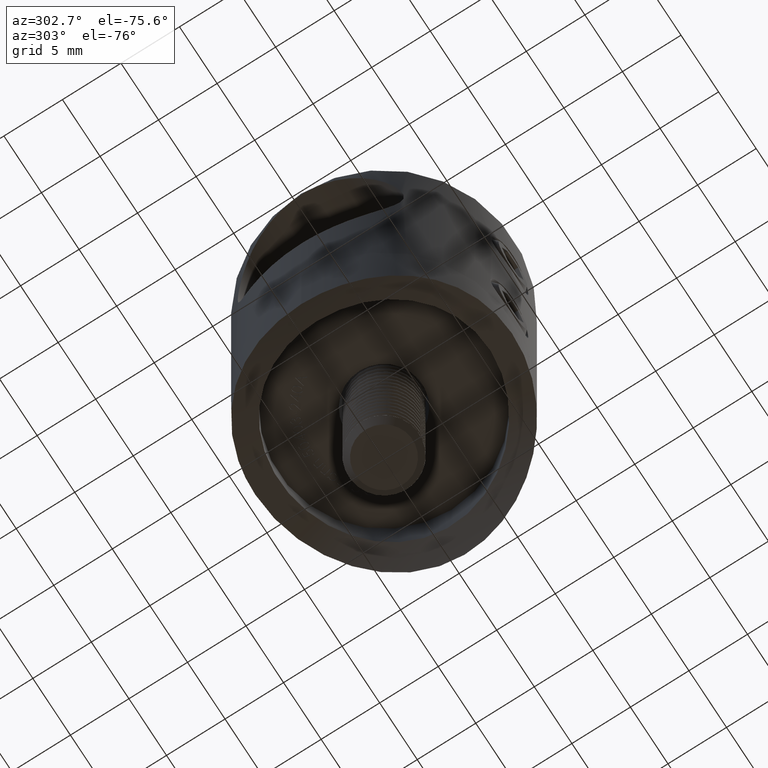
[diagram: clean part render]
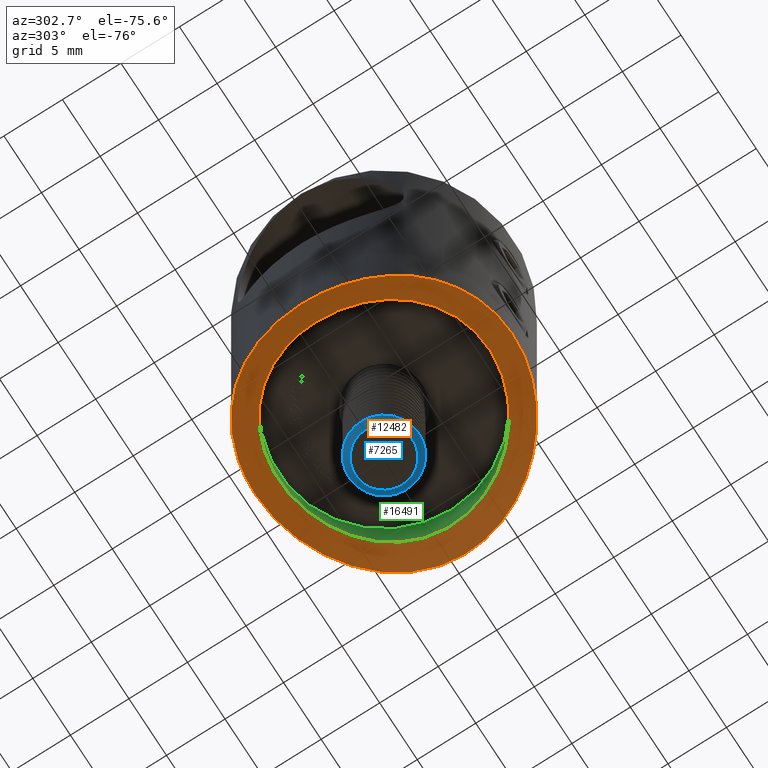
[diagram: same view with three faces highlighted in distinct colors, each labeled with its STEP entity id]
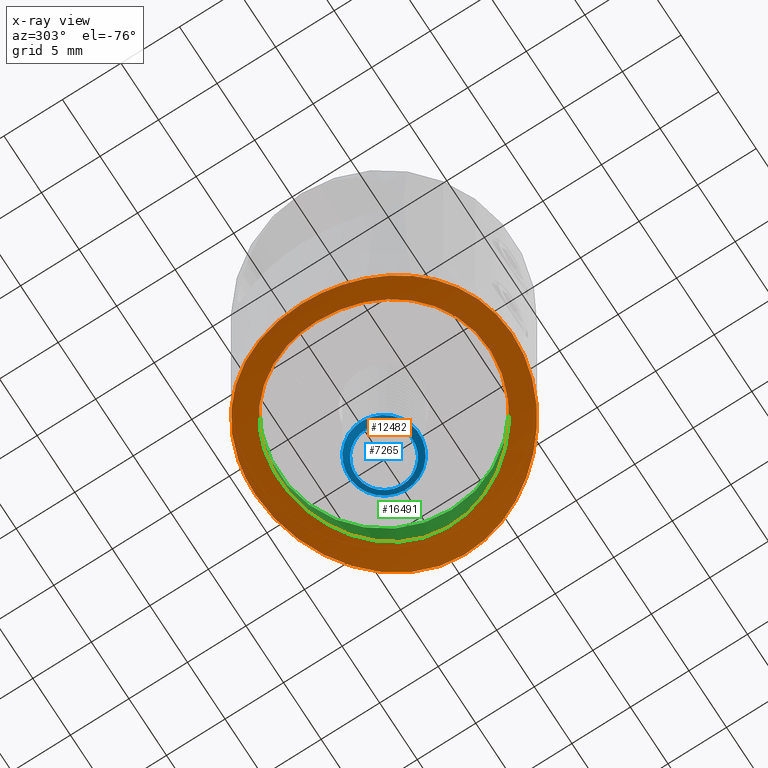
[diagram: x-ray of the same camera — body ghosted, the three highlighted faces saturated]
A machine part, auxiliary view with three faces highlighted in distinct colors.
The next image is the same camera in x-ray (body ghosted, the three faces saturated) — at least one of them is partly hidden behind the body in this view.
Their STEP definitions:

[orange] entity #12482 — the highlighted cylindrical surface (partial cylindrical patch) has radius 16.85 mm, axis along (0, 1, 0).
#294 = VERTEX_POINT ( 'NONE', #21151 ) ;
#390 = CARTESIAN_POINT ( 'NONE',  ( -7.797088794533235200, -4.532650516029330700, -6.008139167098890200 ) ) ;
#412 = ORIENTED_EDGE ( 'NONE', *, *, #1864, .T. ) ;
#607 = CARTESIAN_POINT ( 'NONE',  ( -8.526297857816198100, -2.940399998006673100, -6.414091560879913200 ) ) ;
#682 = CARTESIAN_POINT ( 'NONE',  ( -5.943528670731242700, 6.764565898683118300, -5.181228008002656300 ) ) ;
#686 = EDGE_LOOP ( 'NONE', ( #412 ) ) ;
#724 = CARTESIAN_POINT ( 'NONE',  ( 10.97857567691352700, 0.7798588940482332800, -8.167356961858532200 ) ) ;
#752 = CARTESIAN_POINT ( 'NONE',  ( 8.767997700604155400, 2.052070582208247000, -6.560788958126636300 ) ) ;
#824 = CARTESIAN_POINT ( 'NONE',  ( 9.002117627807262300, 0.5654481320849269500, -6.706251025532279400 ) ) ;
#871 = CARTESIAN_POINT ( 'NONE',  ( 5.583335700524620500, 9.504358815653152000, -5.039322906466653200 ) ) ;
#903 = CARTESIAN_POINT ( 'NONE',  ( 2.348742300159040400, -8.693213217374987400, -4.262013220954529800 ) ) ;
#953 = CARTESIAN_POINT ( 'NONE',  ( 1.484457244692798400, 10.92404542418735500, -4.149861375080862800 ) ) ;
#987 = CARTESIAN_POINT ( 'NONE',  ( 8.081130425237393700, 4.005697824238154700, -6.161957311337413800 ) ) ;
#1025 = CARTESIAN_POINT ( 'NONE',  ( 8.923976763951415600, 6.440819694390915700, -6.655284595638328900 ) ) ;
#1094 = CARTESIAN_POINT ( 'NONE',  ( -9.504457166913262300, -5.581481274748702100, -7.028651301162893700 ) ) ;
#1177 = CARTESIAN_POINT ( 'NONE',  ( -8.261126776390940000, -7.271634869465105800, -6.261808302300234900 ) ) ;
#1206 = CARTESIAN_POINT ( 'NONE',  ( -8.923624948492776100, 1.208437933319262100, -6.656899802793689400 ) ) ;
#1257 = CARTESIAN_POINT ( 'NONE',  ( -2.899918832615932600, -10.63628547833321400, -4.335527576649221600 ) ) ;
#1285 = CARTESIAN_POINT ( 'NONE',  ( -8.877634590881919900, 1.509137806476188400, -6.628161024891541700 ) ) ;
#1326 = CARTESIAN_POINT ( 'NONE',  ( -10.28190739673833900, 3.925598203230044700, -7.599535194388929300 ) ) ;
#1864 = EDGE_CURVE ( 'NONE', #294, #294, #5697, .T. ) ;
#2166 = CARTESIAN_POINT ( 'NONE',  ( -5.957807994985246000, -6.751927895200891400, -5.186641762514614800 ) ) ;
#2196 = DIRECTION ( 'NONE',  ( -0.0000000000000000000, 1.000000000000000000, -0.0000000000000000000 ) ) ;
#2436 = CARTESIAN_POINT ( 'NONE',  ( 10.60391943083395300, 2.947821833262430000, -7.854242667856583500 ) ) ;
#2464 = CARTESIAN_POINT ( 'NONE',  ( 8.523009683764774600, 2.906197388975945800, -6.414151766958431400 ) ) ;
#2509 = CARTESIAN_POINT ( 'NONE',  ( 10.26041540776501600, 3.981199565304947500, -7.583002321637183100 ) ) ;
#2541 = CARTESIAN_POINT ( 'NONE',  ( 3.200048630397407400, -8.417081813282703000, -4.404304738579494200 ) ) ;
#2616 = CARTESIAN_POINT ( 'NONE',  ( 1.476751091017767000, -8.883008077904742400, -4.162270580325193600 ) ) ;
#2663 = CARTESIAN_POINT ( 'NONE',  ( 8.269092376313965400, 7.262551162746977000, -6.266302194668813100 ) ) ;
#2691 = CARTESIAN_POINT ( 'NONE',  ( 8.422361920626258300, 3.186124711963693300, -6.355363534646164300 ) ) ;
#2768 = CARTESIAN_POINT ( 'NONE',  ( -0.2721457111335624000, 9.000858815726553900, -4.099541286885172800 ) ) ;
#2807 = CARTESIAN_POINT ( 'NONE',  ( -7.313931224412483400, 8.246267564684838900, -5.759829195327544200 ) ) ;
#2888 = CARTESIAN_POINT ( 'NONE',  ( -9.513323411660570300, 5.533801788003234600, -7.040950786251593200 ) ) ;
#2965 = CARTESIAN_POINT ( 'NONE',  ( 0.4040280168444430100, -10.99899601032173800, -4.100655422304378700 ) ) ;
#3040 = CARTESIAN_POINT ( 'NONE',  ( 4.994393721956345000, -9.807314022847331000, -4.853819657771773600 ) ) ;
#3071 = CARTESIAN_POINT ( 'NONE',  ( -8.999999999999998200, 0.3035544264433379700, -6.704913127678019600 ) ) ;
#3125 = CARTESIAN_POINT ( 'NONE',  ( -4.649684354675678800, 9.975582769408347900, -4.750546585087526800 ) ) ;
#3960 = CARTESIAN_POINT ( 'NONE',  ( -4.552025852731567600, -7.785764892461918100, -4.718630286860567400 ) ) ;
#4186 = CARTESIAN_POINT ( 'NONE',  ( -7.309928328518850500, -5.258310225204644100, -5.767105923545978300 ) ) ;
#4258 = CARTESIAN_POINT ( 'NONE',  ( -7.625567915572274200, 4.789036509286503000, -5.923160285720819700 ) ) ;
#4330 = CARTESIAN_POINT ( 'NONE',  ( -2.092200281080137400, -8.758507331697293500, -4.227817630384451200 ) ) ;
#4405 = CARTESIAN_POINT ( 'NONE',  ( 6.767025709518397200, -5.961424383751995600, -5.512278814942804100 ) ) ;
#4448 = CARTESIAN_POINT ( 'NONE',  ( 8.714127519215512800, 6.722091913860005300, -6.525962716869017300 ) ) ;
#4481 = CARTESIAN_POINT ( 'NONE',  ( 2.060544425541009700, -8.766001538176629600, -4.223888391995914500 ) ) ;
#4532 = CARTESIAN_POINT ( 'NONE',  ( 8.035128173064736100, 7.520482768428734300, -6.136631074858657400 ) ) ;
#4560 = CARTESIAN_POINT ( 'NONE',  ( 8.942784940732842400, 1.175460298121183000, -6.668270068185632800 ) ) ;
#4602 = CARTESIAN_POINT ( 'NONE',  ( -10.60270450494716400, -2.952260054067377100, -7.853254554322739400 ) ) ;
#4668 = CARTESIAN_POINT ( 'NONE',  ( 9.517753844899608900, -5.526146421711025900, -7.043990017508975600 ) ) ;
#4739 = CARTESIAN_POINT ( 'NONE',  ( -10.84386393418551700, -1.882690263943270500, -8.052616139201704800 ) ) ;
#4822 = CARTESIAN_POINT ( 'NONE',  ( -8.304453093722246500, 7.247798115150285300, -6.277885706390971900 ) ) ;
#4894 = CARTESIAN_POINT ( 'NONE',  ( -3.647820308111114700, 10.40291650209018400, -4.485087939503843700 ) ) ;
#5660 = CARTESIAN_POINT ( 'NONE',  ( -6.769756498228754400, -5.937473838987434900, -5.518430931824773300 ) ) ;
#5697 = B_SPLINE_CURVE_WITH_KNOTS ( 'NONE', 3,
 ( #14999, #20293, #953, #20440, #6079, #11494, #871, #13240, #11640, #4532, #2663, #4448, #1025, #22211, #16777, #2509, #6232, #2436, #6005, #7986, #13319, #724, #16555, #20145, #9546, #21912, #11341, #13094, #8206, #20585, #18947, #4668, #11783, #11859, #9921, #8136, #17067, #9994, #13612, #3040, #22351, #16995, #13460, #8276, #12012, #16922, #2965, #6450, #20510, #1257, #22286, #15451, #8439, #22424, #11716, #13686, #1177, #11934, #18784, #1094, #20731, #18869, #13534, #4602, #15301, #4739, #15227, #6525, #6376, #20816, #10151, #20654, #17219, #10077, #1326, #15378, #6676, #2888, #8364, #18714, #4822, #2807, #17139, #19023, #6599, #22506, #3125, #4894, #10229, #22581, #13393, #15153, #6990, #15686 ),
 .UNSPECIFIED., .T., .F.,
 ( 4, 2, 2, 2, 2, 2, 2, 2, 2, 2, 2, 2, 2, 2, 2, 2, 2, 2, 2, 2, 2, 2, 2, 2, 2, 2, 2, 2, 2, 2, 2, 2, 2, 2, 2, 2, 2, 2, 2, 2, 2, 2, 2, 2, 2, 2, 4 ),
 ( 0.0000000000000000000, 0.002215515586463679600, 0.004431031172927359300, 0.006646546759391038500, 0.008862062345854718500, 0.009969820139086562500, 0.01107757793231840600, 0.01329309351878208900, 0.01440085131201393300, 0.01550860910524577300, 0.01661636689847761600, 0.01772412469170945800, 0.01993964027817313900, 0.02104739807140498100, 0.02215515586463682300, 0.02326291365786865900, 0.02437067145110050100, 0.02658618703756418200, 0.02880170262402786600, 0.02990946041725970500, 0.03101721821049154400, 0.03323273379695522400, 0.03434049159018706000, 0.03544824938341890200, 0.03766376496988257900, 0.03987928055634625700, 0.04209479614280994100, 0.04431031172927361900, 0.04541806952250546100, 0.04652582731573729600, 0.04874134290220098800, 0.04984910069543283000, 0.05095685848866466500, 0.05206461628189650700, 0.05317237407512834200, 0.05538788966159202700, 0.05649564745482386200, 0.05760340524805570400, 0.05871116304128754700, 0.05981892083451938900, 0.06203443642098307300, 0.06424995200744676400, 0.06535770980067860700, 0.06646546759391046300, 0.06868098318037414700, 0.06978874097360598900, 0.07089649876683783200 ),
 .UNSPECIFIED. ) ;
#5738 = CARTESIAN_POINT ( 'NONE',  ( -3.231651342975603700, -8.404898307200047800, -4.410498670644122000 ) ) ;
#5955 = CARTESIAN_POINT ( 'NONE',  ( -8.939234714585193600, -1.201100035928155800, -6.666035329679028900 ) ) ;
#6005 = CARTESIAN_POINT ( 'NONE',  ( 10.69569944305366800, 2.595285760545030600, -7.929483404346758100 ) ) ;
#6035 = CARTESIAN_POINT ( 'NONE',  ( 3.777935387974453700, 8.173918097422760100, -4.526671945371069800 ) ) ;
#6079 = CARTESIAN_POINT ( 'NONE',  ( 3.631501573464931200, 10.40822166215027900, -4.481695934011163700 ) ) ;
#6108 = CARTESIAN_POINT ( 'NONE',  ( 1.220418569986022800, 8.937290988820052500, -4.133728545056423600 ) ) ;
#6187 = CARTESIAN_POINT ( 'NONE',  ( -4.777935619119113600, 7.632550779483404200, -4.789625035806794000 ) ) ;
#6232 = CARTESIAN_POINT ( 'NONE',  ( 10.38560268325633000, 3.643078061449605400, -7.680439935568902100 ) ) ;
#6265 = CARTESIAN_POINT ( 'NONE',  ( 0.6254606039708046100, 8.998160360196070700, -4.100982593789536800 ) ) ;
#6334 = CARTESIAN_POINT ( 'NONE',  ( -1.174138839021468200, 8.928204569007860400, -4.138256484811091000 ) ) ;
#6376 = CARTESIAN_POINT ( 'NONE',  ( -10.99892727231373100, -0.4035808757864801100, -8.184965698834776800 ) ) ;
#6403 = CARTESIAN_POINT ( 'NONE',  ( -8.056514729353526900, 4.022235242260661500, -6.150000922084964300 ) ) ;
#6450 = CARTESIAN_POINT ( 'NONE',  ( -0.7230737693545389300, -11.00189855515613700, -4.098760589519369700 ) ) ;
#6525 = CARTESIAN_POINT ( 'NONE',  ( -10.97850977820062600, -0.7810570618380818800, -8.167299743271211600 ) ) ;
#6599 = CARTESIAN_POINT ( 'NONE',  ( -5.604322291244399100, 9.472035219047118200, -5.055877871646831800 ) ) ;
#6676 = CARTESIAN_POINT ( 'NONE',  ( -9.850663112943012200, 4.908229904870082400, -7.277786989641064100 ) ) ;
#6990 = CARTESIAN_POINT ( 'NONE',  ( -0.3752112787644171800, 11.00000000000000200, -4.099999999999999600 ) ) ;
#7239 = DIRECTION ( 'NONE',  ( 0.0000000000000000000, 0.0000000000000000000, 1.000000000000000000 ) ) ;
#7500 = CARTESIAN_POINT ( 'NONE',  ( -2.954257939733777100, -8.506565268108298400, -4.358484209500284500 ) ) ;
#7797 = CARTESIAN_POINT ( 'NONE',  ( 5.258496553154993000, -7.309796590042275000, -4.939536630094379700 ) ) ;
#7873 = CARTESIAN_POINT ( 'NONE',  ( -3.744279541798004800, 8.189553005263970700, -4.518887132802680300 ) ) ;
#7947 = CARTESIAN_POINT ( 'NONE',  ( -5.493574878806450500, 7.134810432546717400, -5.018887727269298400 ) ) ;
#7986 = CARTESIAN_POINT ( 'NONE',  ( 10.84434200566227700, 1.879824784190038400, -8.053020297059907400 ) ) ;
#8017 = CARTESIAN_POINT ( 'NONE',  ( 7.134608504950914000, -5.517095482785879100, -5.680667870768156800 ) ) ;
#8094 = CARTESIAN_POINT ( 'NONE',  ( -1.474042599237720000, 8.883506363623125100, -4.162007519608026800 ) ) ;
#8136 = CARTESIAN_POINT ( 'NONE',  ( 7.324541236306505000, -8.236759769819171200, -5.764989743605612600 ) ) ;
#8206 = CARTESIAN_POINT ( 'NONE',  ( 10.28409182688678100, -3.919822377358858300, -7.601224180167291100 ) ) ;
#8276 = CARTESIAN_POINT ( 'NONE',  ( 1.891625101859110800, -10.84241175405865600, -4.202550746245740300 ) ) ;
#8364 = CARTESIAN_POINT ( 'NONE',  ( -9.331423384684521600, 5.834979642257271100, -6.917864575895957400 ) ) ;
#8439 = CARTESIAN_POINT ( 'NONE',  ( -5.567662256621773900, -9.513652561121729100, -5.033765088256144400 ) ) ;
#8948 = CARTESIAN_POINT ( 'NONE',  ( -8.999999999999998200, 0.0000000000000000000, -6.704913127678018700 ) ) ;
#9287 = CARTESIAN_POINT ( 'NONE',  ( -2.383502363788867000, -8.683790020312518000, -4.266926162043927400 ) ) ;
#9502 = CARTESIAN_POINT ( 'NONE',  ( -7.136054399886305100, -5.491805371263069400, -5.684363604715451300 ) ) ;
#9546 = CARTESIAN_POINT ( 'NONE',  ( 10.92911577364980900, -1.448483440927385000, -8.123745414125503200 ) ) ;
#9575 = CARTESIAN_POINT ( 'NONE',  ( -0.5722147814154092700, 8.986879830245937800, -4.107022464014129100 ) ) ;
#9643 = CARTESIAN_POINT ( 'NONE',  ( 4.019086237761177600, -8.074481764611892500, -4.576826285162552700 ) ) ;
#9723 = CARTESIAN_POINT ( 'NONE',  ( 4.532702480700874200, -7.797067203172933800, -4.713189922402301900 ) ) ;
#9801 = CARTESIAN_POINT ( 'NONE',  ( 8.063690013734735400, -4.039346743676783400, -6.152458506225569200 ) ) ;
#9877 = CARTESIAN_POINT ( 'NONE',  ( 2.969016380059763100, 8.516329794651968000, -4.354475227410789600 ) ) ;
#9921 = CARTESIAN_POINT ( 'NONE',  ( 8.312457816443618700, -7.238519246220975300, -6.282468310618768600 ) ) ;
#9994 = CARTESIAN_POINT ( 'NONE',  ( 5.920309234495463500, -9.277556956168968600, -5.171232405357976300 ) ) ;
#10077 = CARTESIAN_POINT ( 'NONE',  ( -10.40478755954617400, 3.587757172743404800, -7.695506397685850400 ) ) ;
#10151 = CARTESIAN_POINT ( 'NONE',  ( -10.92889180310983300, 1.450768181064455300, -8.123545870956636600 ) ) ;
#10229 = CARTESIAN_POINT ( 'NONE',  ( -2.953023256731231300, 10.62197701239059300, -4.344706131990983000 ) ) ;
#10326 = FACE_OUTER_BOUND ( 'NONE', #686, .T. ) ;
#11230 = CARTESIAN_POINT ( 'NONE',  ( -8.999999999999998200, 5.421010862427522200E-017, -6.704913127678019600 ) ) ;
#11301 = CARTESIAN_POINT ( 'NONE',  ( 2.917833501594557300, -8.519084111116166400, -4.352056127726987400 ) ) ;
#11341 = CARTESIAN_POINT ( 'NONE',  ( 10.61975103781053800, -2.890001075165774300, -7.867110985709172300 ) ) ;
#11372 = CARTESIAN_POINT ( 'NONE',  ( 6.156201835296486500, -6.571452150948916300, -5.263317047625912800 ) ) ;
#11447 = CARTESIAN_POINT ( 'NONE',  ( 8.680771144915244300, -2.394114882269442900, -6.507798624479782700 ) ) ;
#11494 = CARTESIAN_POINT ( 'NONE',  ( 4.957832025022766800, 9.845749512261178900, -4.831292108248831600 ) ) ;
#11523 = CARTESIAN_POINT ( 'NONE',  ( -7.139208689779468200, 5.510746426112776300, -5.682878771086206100 ) ) ;
#11594 = CARTESIAN_POINT ( 'NONE',  ( 8.997763151772490500, -0.6309608859205843000, -6.703499907095301000 ) ) ;
#11640 = CARTESIAN_POINT ( 'NONE',  ( 7.298473991795845000, 8.259301465761376800, -5.752582059087585800 ) ) ;
#11716 = CARTESIAN_POINT ( 'NONE',  ( -7.287832315626904000, -8.268784713272825800, -5.747426715403324900 ) ) ;
#11783 = CARTESIAN_POINT ( 'NONE',  ( 9.336363142654940700, -5.827041217196950600, -6.921160638891731100 ) ) ;
#11816 = CARTESIAN_POINT ( 'NONE',  ( -8.697453753089332600, 2.390370181689105400, -6.517513435117698400 ) ) ;
#11859 = CARTESIAN_POINT ( 'NONE',  ( 8.753413770078076100, -6.698215559651554700, -6.544643719260795600 ) ) ;
#11934 = CARTESIAN_POINT ( 'NONE',  ( -8.707368420141696300, -6.730871005029237100, -6.521870316638445100 ) ) ;
#12012 = CARTESIAN_POINT ( 'NONE',  ( 1.521233653155181100, -10.90071426419850400, -4.164673317254778500 ) ) ;
#12482 = ADVANCED_FACE ( 'NONE', ( #20008, #10326 ), #18859, .F. ) ;
#12756 = CARTESIAN_POINT ( 'NONE',  ( -8.703958528421882300, -2.365092918737795800, -6.521463347902023400 ) ) ;
#12838 = ORIENTED_EDGE ( 'NONE', *, *, #17218, .T. ) ;
#12975 = CARTESIAN_POINT ( 'NONE',  ( -8.072784026240093200, -4.021674449052479600, -6.157415797894997500 ) ) ;
#13049 = CARTESIAN_POINT ( 'NONE',  ( -0.6241749436309362900, -8.998437823462584400, -4.100834395043397900 ) ) ;
#13094 = CARTESIAN_POINT ( 'NONE',  ( 10.40660793608673800, -3.582419515371406200, -7.696939661726952800 ) ) ;
#13121 = CARTESIAN_POINT ( 'NONE',  ( 5.533633707270934300, 7.121846342639303300, -5.026473259026425400 ) ) ;
#13198 = CARTESIAN_POINT ( 'NONE',  ( -2.921239271995002900, 8.533463070077415200, -4.345685546142791900 ) ) ;
#13240 = CARTESIAN_POINT ( 'NONE',  ( 6.761475590729557600, 8.705683309046159800, -5.503132001748452000 ) ) ;
#13271 = CARTESIAN_POINT ( 'NONE',  ( 7.160907752727975900, 5.482500273980068800, -5.693091655285281900 ) ) ;
#13319 = CARTESIAN_POINT ( 'NONE',  ( 10.90120721894147200, 1.516899785101762700, -8.101312592176501700 ) ) ;
#13350 = CARTESIAN_POINT ( 'NONE',  ( 7.805392656181970400, 4.517992317400698200, -6.012540458132589200 ) ) ;
#13393 = CARTESIAN_POINT ( 'NONE',  ( -1.495634549109364300, 10.90427622395808900, -4.162358782812155800 ) ) ;
#13460 = CARTESIAN_POINT ( 'NONE',  ( 2.975070670190538700, -10.61571981494909300, -4.348715030468193600 ) ) ;
#13534 = CARTESIAN_POINT ( 'NONE',  ( -10.38371390694916000, -3.648515827661915200, -7.678957479281230300 ) ) ;
#13612 = CARTESIAN_POINT ( 'NONE',  ( 5.619624300000450200, -9.462938218095864300, -5.061299203953278300 ) ) ;
#13686 = CARTESIAN_POINT ( 'NONE',  ( -8.026524102714901700, -7.529690295910200800, -6.131954602171922500 ) ) ;
#13718 = CARTESIAN_POINT ( 'NONE',  ( -8.182656430668171100, 3.758905916802296200, -6.219638485047899400 ) ) ;
#13812 = B_SPLINE_CURVE_WITH_KNOTS ( 'NONE', 3,
 ( #11230, #18291, #5955, #12756, #607, #12975, #390, #4186, #9502, #5660, #17989, #19807, #2166, #21863, #14516, #3960, #16290, #5738, #7500, #9287, #4330, #16584, #13049, #20320, #16662, #18590, #2616, #4481, #903, #11301, #2541, #9643, #9723, #7797, #20399, #21941, #11372, #4405, #8017, #22014, #9801, #18670, #22164, #11447, #15110, #14951, #11594, #824, #4560, #752, #16807, #2464, #2691, #987, #13350, #13271, #14874, #15029, #13121, #20469, #18367, #16881, #6035, #9877, #20172, #6108, #6265, #2768, #9575, #6334, #8094, #18441, #13198, #7873, #20247, #16732, #6187, #18510, #7947, #682, #14805, #22087, #11523, #4258, #15180, #6403, #13718, #17097, #11816, #1285, #1206, #20540, #3071, #18978 ),
 .UNSPECIFIED., .T., .F.,
 ( 4, 2, 2, 2, 2, 2, 2, 2, 2, 2, 2, 2, 2, 2, 2, 2, 2, 2, 2, 2, 2, 2, 2, 2, 2, 2, 2, 2, 2, 2, 2, 2, 2, 2, 2, 2, 2, 2, 2, 2, 2, 2, 2, 2, 2, 2, 4 ),
 ( 0.0000000000000000000, 0.001791929199387558800, 0.003583858398775116800, 0.005375787598162674700, 0.006271752197856455400, 0.007167716797550235200, 0.008063681397244015100, 0.008959645996937794900, 0.01075157519632535300, 0.01164753979601913100, 0.01254350439571290900, 0.01433543359510046400, 0.01523139819479424300, 0.01612736279448802300, 0.01702332739418180300, 0.01791929199387558300, 0.01971122119326313600, 0.02060718579295691500, 0.02150315039265069500, 0.02329507959203825800, 0.02508700879142582200, 0.02598297339111959800, 0.02687893799081337800, 0.02867086719020093800, 0.03046279638958850100, 0.03135876098928228100, 0.03225472558897606000, 0.03404665478836362000, 0.03583858398775118000, 0.03763051318713873200, 0.03852647778683251200, 0.03942244238652629200, 0.04121437158591385200, 0.04300630078530141100, 0.04390226538499519100, 0.04479822998468897100, 0.04659015918407653100, 0.04748612378377031100, 0.04838208838346409100, 0.04927805298315787000, 0.05017401758285164300, 0.05196594678223920300, 0.05286191138193298300, 0.05375787598162676300, 0.05554980518101432200, 0.05644576978070810200, 0.05734173438040188200 ),
 .UNSPECIFIED. ) ;
#14516 = CARTESIAN_POINT ( 'NONE',  ( -5.276021894448012600, -7.297147494087153200, -4.945311827422430400 ) ) ;
#14805 = CARTESIAN_POINT ( 'NONE',  ( -6.159890061767185900, 6.568056148921659300, -5.264751887033814800 ) ) ;
#14874 = CARTESIAN_POINT ( 'NONE',  ( 6.789418910662325500, 5.935974566348902700, -5.522137807243876900 ) ) ;
#14951 = CARTESIAN_POINT ( 'NONE',  ( 8.936562260900343400, -1.223008817333223400, -6.664333553120041400 ) ) ;
#14999 = CARTESIAN_POINT ( 'NONE',  ( -5.421010862427522200E-016, 11.00000000000000000, -4.099999999999999600 ) ) ;
#15029 = CARTESIAN_POINT ( 'NONE',  ( 5.977026886871089000, 6.753306804108662600, -5.189597385321874000 ) ) ;
#15110 = CARTESIAN_POINT ( 'NONE',  ( 8.756187516724763100, -2.102059484055854600, -6.553588714871732000 ) ) ;
#15153 = CARTESIAN_POINT ( 'NONE',  ( -0.7507821401581715700, 10.98073261904172200, -4.112596799995159800 ) ) ;
#15180 = CARTESIAN_POINT ( 'NONE',  ( -7.777914304797517900, 4.537604543765374900, -6.001707409948039600 ) ) ;
#15188 = VERTEX_POINT ( 'NONE', #8948 ) ;
#15227 = CARTESIAN_POINT ( 'NONE',  ( -10.90090342499425300, -1.519220722226561200, -8.101054233036480300 ) ) ;
#15301 = CARTESIAN_POINT ( 'NONE',  ( -10.69476580629262200, -2.599209880257915600, -7.928714355929983500 ) ) ;
#15378 = CARTESIAN_POINT ( 'NONE',  ( -10.00515826687519700, 4.585275239621323000, -7.390894635126502800 ) ) ;
#15450 = AXIS2_PLACEMENT_3D ( 'NONE', #17793, #2196, #7239 ) ;
#15451 = CARTESIAN_POINT ( 'NONE',  ( -4.940812458176210100, -9.854400788619697600, -4.825997802038250100 ) ) ;
#15686 = CARTESIAN_POINT ( 'NONE',  ( -5.421010862427522200E-016, 11.00000000000000000, -4.099999999999999600 ) ) ;
#16290 = CARTESIAN_POINT ( 'NONE',  ( -4.041567885135373600, -8.062832806003337200, -4.582565028840782900 ) ) ;
#16555 = CARTESIAN_POINT ( 'NONE',  ( 10.99892969909351400, 0.4029729965433923600, -8.184967790190246000 ) ) ;
#16584 = CARTESIAN_POINT ( 'NONE',  ( -1.216522046379911300, -8.937286215225501700, -4.133718752768097600 ) ) ;
#16662 = CARTESIAN_POINT ( 'NONE',  ( 0.5822777371568735900, -8.986183028970740900, -4.107394420722656000 ) ) ;
#16732 = CARTESIAN_POINT ( 'NONE',  ( -4.528431843985454300, 7.783269436300313000, -4.717717369417859400 ) ) ;
#16777 = CARTESIAN_POINT ( 'NONE',  ( 9.843250045500743900, 4.961322990543318500, -7.269578455515920200 ) ) ;
#16807 = CARTESIAN_POINT ( 'NONE',  ( 8.695601738897531500, 2.339698213813247800, -6.516736740360895100 ) ) ;
#16881 = CARTESIAN_POINT ( 'NONE',  ( 4.041245168714114700, 8.046985468913808500, -4.589635013371438500 ) ) ;
#16922 = CARTESIAN_POINT ( 'NONE',  ( 0.7777350981201828200, -10.97883652370981800, -4.113834409488529100 ) ) ;
#16995 = CARTESIAN_POINT ( 'NONE',  ( 3.668218985695954600, -10.39566322427721600, -4.489679260312636100 ) ) ;
#17067 = CARTESIAN_POINT ( 'NONE',  ( 6.789191799571511000, -8.683281219485916600, -5.515698990244468200 ) ) ;
#17097 = CARTESIAN_POINT ( 'NONE',  ( -8.522281340456125100, 2.951555618486552100, -6.411744009398446100 ) ) ;
#17139 = CARTESIAN_POINT ( 'NONE',  ( -6.777151808125120500, 8.692780634645684400, -5.510347272570602900 ) ) ;
#17218 = EDGE_CURVE ( 'NONE', #15188, #15188, #13812, .T. ) ;
#17219 = CARTESIAN_POINT ( 'NONE',  ( -10.61856669320482600, 2.894416533918324800, -7.866145591033403900 ) ) ;
#17793 = CARTESIAN_POINT ( 'NONE',  ( 0.0000000000000000000, -11.00000000000000000, -20.94999999999999900 ) ) ;
#17989 = CARTESIAN_POINT ( 'NONE',  ( -6.576742401764640500, -6.150538336385889000, -5.434941400903024800 ) ) ;
#18291 = CARTESIAN_POINT ( 'NONE',  ( -8.999999999999996400, -0.6071088528866758200, -6.704913127678017800 ) ) ;
#18367 = CARTESIAN_POINT ( 'NONE',  ( 4.555459080950839700, 7.767459701366187000, -4.725296687731406200 ) ) ;
#18441 = CARTESIAN_POINT ( 'NONE',  ( -2.353999689058933900, 8.707274720112540200, -4.254816326611737600 ) ) ;
#18510 = CARTESIAN_POINT ( 'NONE',  ( -5.260507770464912800, 7.308321160069401600, -4.940207816444088400 ) ) ;
#18590 = CARTESIAN_POINT ( 'NONE',  ( 1.181156269983225400, -8.927228162158147700, -4.138775180607090900 ) ) ;
#18670 = CARTESIAN_POINT ( 'NONE',  ( 8.403798506831426700, -3.234350838250581500, -6.344671233382892500 ) ) ;
#18714 = CARTESIAN_POINT ( 'NONE',  ( -8.746824076971785500, 6.706926852566843100, -6.540603192880103800 ) ) ;
#18784 = CARTESIAN_POINT ( 'NONE',  ( -8.917872823006519000, -6.449298731427829200, -6.651465696766070600 ) ) ;
#18859 = CYLINDRICAL_SURFACE ( 'NONE', #15450, 16.85000000000000100 ) ;
#18869 = CARTESIAN_POINT ( 'NONE',  ( -10.25818145571561900, -3.986997462161848500, -7.581281686274249600 ) ) ;
#18947 = CARTESIAN_POINT ( 'NONE',  ( 9.854148997464204000, -4.901191698155273000, -7.280307266766505400 ) ) ;
#18978 = CARTESIAN_POINT ( 'NONE',  ( -8.999999999999998200, 5.421010862427522200E-017, -6.704913127678019600 ) ) ;
#19023 = CARTESIAN_POINT ( 'NONE',  ( -5.905856559890865200, 9.286787051618294000, -5.165802236493235900 ) ) ;
#19807 = CARTESIAN_POINT ( 'NONE',  ( -6.170767472243693600, -6.557765720885474700, -5.269049366952234700 ) ) ;
#20008 = FACE_BOUND ( 'NONE', #20284, .T. ) ;
#20145 = CARTESIAN_POINT ( 'NONE',  ( 11.00201491404832400, -0.7148670346551255800, -8.187626584236538100 ) ) ;
#20172 = CARTESIAN_POINT ( 'NONE',  ( 2.403321873601216300, 8.694172512475290700, -4.261667216160061500 ) ) ;
#20247 = CARTESIAN_POINT ( 'NONE',  ( -4.012208138427205900, 8.061523673450732700, -4.582474829142354300 ) ) ;
#20284 = EDGE_LOOP ( 'NONE', ( #12838 ) ) ;
#20293 = CARTESIAN_POINT ( 'NONE',  ( 0.7504225575288329100, 10.99999999999999600, -4.099999999999999600 ) ) ;
#20320 = CARTESIAN_POINT ( 'NONE',  ( 0.2776672623730794800, -9.000737208537467300, -4.099606239696249200 ) ) ;
#20399 = CARTESIAN_POINT ( 'NONE',  ( 5.493936980478560300, -7.134494571433200400, -5.019023662124764600 ) ) ;
#20440 = CARTESIAN_POINT ( 'NONE',  ( 2.922207133913592000, 10.63010287850188700, -4.339491982653713700 ) ) ;
#20469 = CARTESIAN_POINT ( 'NONE',  ( 4.807725246531378000, 7.613883850405599700, -4.798448853962939100 ) ) ;
#20510 = CARTESIAN_POINT ( 'NONE',  ( -1.459233787555855600, -10.92752189499604600, -4.147593627837132100 ) ) ;
#20540 = CARTESIAN_POINT ( 'NONE',  ( -8.984605093228683600, 0.6068572968801700900, -6.695152866920287800 ) ) ;
#20585 = CARTESIAN_POINT ( 'NONE',  ( 10.00816566813236000, -4.578664885433245700, -7.393120545228461200 ) ) ;
#20654 = CARTESIAN_POINT ( 'NONE',  ( -10.70988451701696900, 2.536675919777241300, -7.941160734935115400 ) ) ;
#20731 = CARTESIAN_POINT ( 'NONE',  ( -9.839819540571294700, -4.968268669836859000, -7.267086716290001500 ) ) ;
#20816 = CARTESIAN_POINT ( 'NONE',  ( -11.00201958474417000, 0.7160165617464400200, -8.187630609358146600 ) ) ;
#21151 = CARTESIAN_POINT ( 'NONE',  ( 0.0000000000000000000, 11.00000000000000000, -4.099999999999999600 ) ) ;
#21863 = CARTESIAN_POINT ( 'NONE',  ( -5.511031421548648400, -7.121273697717669800, -5.024942018971737300 ) ) ;
#21912 = CARTESIAN_POINT ( 'NONE',  ( 10.71079635700079700, -2.532737721711200600, -7.941913631408527700 ) ) ;
#21941 = CARTESIAN_POINT ( 'NONE',  ( 5.942505359260779900, -6.765425809986878000, -5.180853520923607300 ) ) ;
#22014 = CARTESIAN_POINT ( 'NONE',  ( 7.787708627573255900, -4.548909255757393100, -6.003203134994749700 ) ) ;
#22087 = CARTESIAN_POINT ( 'NONE',  ( -6.773231474935248500, 5.954642221051535100, -5.514947323043687200 ) ) ;
#22164 = CARTESIAN_POINT ( 'NONE',  ( 8.504749320993932200, -2.959191228520101600, -6.403446895277067300 ) ) ;
#22211 = CARTESIAN_POINT ( 'NONE',  ( 9.508842883804703700, 5.573866296199705400, -7.031688101207270100 ) ) ;
#22286 = CARTESIAN_POINT ( 'NONE',  ( -3.610935265409396200, -10.41546874406719200, -4.477106473489020500 ) ) ;
#22351 = CARTESIAN_POINT ( 'NONE',  ( 4.667745864453625200, -9.967123940474456500, -4.755756550861145000 ) ) ;
#22424 = CARTESIAN_POINT ( 'NONE',  ( -6.749316910489418400, -8.715226290770093700, -5.497747154171783300 ) ) ;
#22506 = CARTESIAN_POINT ( 'NONE',  ( -4.977280282428550300, 9.816035886505098100, -4.848502319184940600 ) ) ;
#22581 = CARTESIAN_POINT ( 'NONE',  ( -1.866901934787220000, 10.84672128652364400, -4.199758662475307600 ) ) ;

[blue] entity #7265 — the highlighted conical surface has half-angle 45 deg.
#22 = FACE_OUTER_BOUND ( 'NONE', #3466, .T. ) ;
#2002 = DIRECTION ( 'NONE',  ( 0.0000000000000000000, 0.0000000000000000000, 1.000000000000000000 ) ) ;
#3466 = EDGE_LOOP ( 'NONE', ( #12305 ) ) ;
#3700 = AXIS2_PLACEMENT_3D ( 'NONE', #5350, #12304, #10373 ) ;
#4254 = CIRCLE ( 'NONE', #16776, 3.000000000000000900 ) ;
#4293 = AXIS2_PLACEMENT_3D ( 'NONE', #20487, #20783, #6573 ) ;
#4968 = EDGE_CURVE ( 'NONE', #8881, #8881, #11163, .T. ) ;
#5350 = CARTESIAN_POINT ( 'NONE',  ( 25.00000000000000000, 0.0000000000000000000, 0.0000000000000000000 ) ) ;
#5552 = CARTESIAN_POINT ( 'NONE',  ( 24.44550000000003100, 0.0000000000000000000, 3.000000000000000900 ) ) ;
#5569 = VERTEX_POINT ( 'NONE', #5552 ) ;
#5723 = DIRECTION ( 'NONE',  ( -1.000000000000000000, -0.0000000000000000000, -0.0000000000000000000 ) ) ;
#5992 = EDGE_LOOP ( 'NONE', ( #22099 ) ) ;
#6396 = CONICAL_SURFACE ( 'NONE', #4293, 2.445500000000000000, 0.7853981633974744800 ) ;
#6573 = DIRECTION ( 'NONE',  ( 0.0000000000000000000, 0.0000000000000000000, 1.000000000000000000 ) ) ;
#7265 = ADVANCED_FACE ( 'NONE', ( #22, #22408 ), #6396, .T. ) ;
#8881 = VERTEX_POINT ( 'NONE', #12039 ) ;
#9846 = EDGE_CURVE ( 'NONE', #5569, #5569, #4254, .T. ) ;
#10373 = DIRECTION ( 'NONE',  ( 0.0000000000000000000, 0.0000000000000000000, 1.000000000000000000 ) ) ;
#11163 = CIRCLE ( 'NONE', #3700, 2.445500000000000000 ) ;
#12039 = CARTESIAN_POINT ( 'NONE',  ( 25.00000000000000000, 0.0000000000000000000, 2.445500000000000000 ) ) ;
#12304 = DIRECTION ( 'NONE',  ( -1.000000000000000000, -0.0000000000000000000, -0.0000000000000000000 ) ) ;
#12305 = ORIENTED_EDGE ( 'NONE', *, *, #9846, .F. ) ;
#14650 = CARTESIAN_POINT ( 'NONE',  ( 24.44550000000003100, 0.0000000000000000000, 0.0000000000000000000 ) ) ;
#16776 = AXIS2_PLACEMENT_3D ( 'NONE', #14650, #5723, #2002 ) ;
#20487 = CARTESIAN_POINT ( 'NONE',  ( 25.00000000000000000, 0.0000000000000000000, 0.0000000000000000000 ) ) ;
#20783 = DIRECTION ( 'NONE',  ( -1.000000000000000000, -0.0000000000000000000, -0.0000000000000000000 ) ) ;
#22099 = ORIENTED_EDGE ( 'NONE', *, *, #4968, .T. ) ;
#22408 = FACE_BOUND ( 'NONE', #5992, .T. ) ;

[green] entity #16491 — the highlighted cylindrical surface (bore or boss wall) has radius 9 mm, axis along (-0, -0, -1).
#390 = CARTESIAN_POINT ( 'NONE',  ( -7.797088794533235200, -4.532650516029330700, -6.008139167098890200 ) ) ;
#556 = VERTEX_POINT ( 'NONE', #14339 ) ;
#607 = CARTESIAN_POINT ( 'NONE',  ( -8.526297857816198100, -2.940399998006673100, -6.414091560879913200 ) ) ;
#682 = CARTESIAN_POINT ( 'NONE',  ( -5.943528670731242700, 6.764565898683118300, -5.181228008002656300 ) ) ;
#752 = CARTESIAN_POINT ( 'NONE',  ( 8.767997700604155400, 2.052070582208247000, -6.560788958126636300 ) ) ;
#816 = CARTESIAN_POINT ( 'NONE',  ( 0.0000000000000000000, 0.0000000000000000000, -2.099999999999999600 ) ) ;
#824 = CARTESIAN_POINT ( 'NONE',  ( 9.002117627807262300, 0.5654481320849269500, -6.706251025532279400 ) ) ;
#903 = CARTESIAN_POINT ( 'NONE',  ( 2.348742300159040400, -8.693213217374987400, -4.262013220954529800 ) ) ;
#987 = CARTESIAN_POINT ( 'NONE',  ( 8.081130425237393700, 4.005697824238154700, -6.161957311337413800 ) ) ;
#1206 = CARTESIAN_POINT ( 'NONE',  ( -8.923624948492776100, 1.208437933319262100, -6.656899802793689400 ) ) ;
#1285 = CARTESIAN_POINT ( 'NONE',  ( -8.877634590881919900, 1.509137806476188400, -6.628161024891541700 ) ) ;
#2166 = CARTESIAN_POINT ( 'NONE',  ( -5.957807994985246000, -6.751927895200891400, -5.186641762514614800 ) ) ;
#2464 = CARTESIAN_POINT ( 'NONE',  ( 8.523009683764774600, 2.906197388975945800, -6.414151766958431400 ) ) ;
#2541 = CARTESIAN_POINT ( 'NONE',  ( 3.200048630397407400, -8.417081813282703000, -4.404304738579494200 ) ) ;
#2616 = CARTESIAN_POINT ( 'NONE',  ( 1.476751091017767000, -8.883008077904742400, -4.162270580325193600 ) ) ;
#2691 = CARTESIAN_POINT ( 'NONE',  ( 8.422361920626258300, 3.186124711963693300, -6.355363534646164300 ) ) ;
#2768 = CARTESIAN_POINT ( 'NONE',  ( -0.2721457111335624000, 9.000858815726553900, -4.099541286885172800 ) ) ;
#3071 = CARTESIAN_POINT ( 'NONE',  ( -8.999999999999998200, 0.3035544264433379700, -6.704913127678019600 ) ) ;
#3960 = CARTESIAN_POINT ( 'NONE',  ( -4.552025852731567600, -7.785764892461918100, -4.718630286860567400 ) ) ;
#4186 = CARTESIAN_POINT ( 'NONE',  ( -7.309928328518850500, -5.258310225204644100, -5.767105923545978300 ) ) ;
#4258 = CARTESIAN_POINT ( 'NONE',  ( -7.625567915572274200, 4.789036509286503000, -5.923160285720819700 ) ) ;
#4330 = CARTESIAN_POINT ( 'NONE',  ( -2.092200281080137400, -8.758507331697293500, -4.227817630384451200 ) ) ;
#4405 = CARTESIAN_POINT ( 'NONE',  ( 6.767025709518397200, -5.961424383751995600, -5.512278814942804100 ) ) ;
#4481 = CARTESIAN_POINT ( 'NONE',  ( 2.060544425541009700, -8.766001538176629600, -4.223888391995914500 ) ) ;
#4560 = CARTESIAN_POINT ( 'NONE',  ( 8.942784940732842400, 1.175460298121183000, -6.668270068185632800 ) ) ;
#5660 = CARTESIAN_POINT ( 'NONE',  ( -6.769756498228754400, -5.937473838987434900, -5.518430931824773300 ) ) ;
#5738 = CARTESIAN_POINT ( 'NONE',  ( -3.231651342975603700, -8.404898307200047800, -4.410498670644122000 ) ) ;
#5955 = CARTESIAN_POINT ( 'NONE',  ( -8.939234714585193600, -1.201100035928155800, -6.666035329679028900 ) ) ;
#6035 = CARTESIAN_POINT ( 'NONE',  ( 3.777935387974453700, 8.173918097422760100, -4.526671945371069800 ) ) ;
#6108 = CARTESIAN_POINT ( 'NONE',  ( 1.220418569986022800, 8.937290988820052500, -4.133728545056423600 ) ) ;
#6187 = CARTESIAN_POINT ( 'NONE',  ( -4.777935619119113600, 7.632550779483404200, -4.789625035806794000 ) ) ;
#6265 = CARTESIAN_POINT ( 'NONE',  ( 0.6254606039708046100, 8.998160360196070700, -4.100982593789536800 ) ) ;
#6334 = CARTESIAN_POINT ( 'NONE',  ( -1.174138839021468200, 8.928204569007860400, -4.138256484811091000 ) ) ;
#6403 = CARTESIAN_POINT ( 'NONE',  ( -8.056514729353526900, 4.022235242260661500, -6.150000922084964300 ) ) ;
#6569 = ORIENTED_EDGE ( 'NONE', *, *, #22471, .F. ) ;
#6684 = CIRCLE ( 'NONE', #13918, 8.999999999999998200 ) ;
#7500 = CARTESIAN_POINT ( 'NONE',  ( -2.954257939733777100, -8.506565268108298400, -4.358484209500284500 ) ) ;
#7797 = CARTESIAN_POINT ( 'NONE',  ( 5.258496553154993000, -7.309796590042275000, -4.939536630094379700 ) ) ;
#7873 = CARTESIAN_POINT ( 'NONE',  ( -3.744279541798004800, 8.189553005263970700, -4.518887132802680300 ) ) ;
#7947 = CARTESIAN_POINT ( 'NONE',  ( -5.493574878806450500, 7.134810432546717400, -5.018887727269298400 ) ) ;
#8017 = CARTESIAN_POINT ( 'NONE',  ( 7.134608504950914000, -5.517095482785879100, -5.680667870768156800 ) ) ;
#8094 = CARTESIAN_POINT ( 'NONE',  ( -1.474042599237720000, 8.883506363623125100, -4.162007519608026800 ) ) ;
#8948 = CARTESIAN_POINT ( 'NONE',  ( -8.999999999999998200, 0.0000000000000000000, -6.704913127678018700 ) ) ;
#9287 = CARTESIAN_POINT ( 'NONE',  ( -2.383502363788867000, -8.683790020312518000, -4.266926162043927400 ) ) ;
#9492 = DIRECTION ( 'NONE',  ( -0.0000000000000000000, -0.0000000000000000000, -1.000000000000000000 ) ) ;
#9502 = CARTESIAN_POINT ( 'NONE',  ( -7.136054399886305100, -5.491805371263069400, -5.684363604715451300 ) ) ;
#9575 = CARTESIAN_POINT ( 'NONE',  ( -0.5722147814154092700, 8.986879830245937800, -4.107022464014129100 ) ) ;
#9643 = CARTESIAN_POINT ( 'NONE',  ( 4.019086237761177600, -8.074481764611892500, -4.576826285162552700 ) ) ;
#9723 = CARTESIAN_POINT ( 'NONE',  ( 4.532702480700874200, -7.797067203172933800, -4.713189922402301900 ) ) ;
#9801 = CARTESIAN_POINT ( 'NONE',  ( 8.063690013734735400, -4.039346743676783400, -6.152458506225569200 ) ) ;
#9877 = CARTESIAN_POINT ( 'NONE',  ( 2.969016380059763100, 8.516329794651968000, -4.354475227410789600 ) ) ;
#11230 = CARTESIAN_POINT ( 'NONE',  ( -8.999999999999998200, 5.421010862427522200E-017, -6.704913127678019600 ) ) ;
#11301 = CARTESIAN_POINT ( 'NONE',  ( 2.917833501594557300, -8.519084111116166400, -4.352056127726987400 ) ) ;
#11372 = CARTESIAN_POINT ( 'NONE',  ( 6.156201835296486500, -6.571452150948916300, -5.263317047625912800 ) ) ;
#11447 = CARTESIAN_POINT ( 'NONE',  ( 8.680771144915244300, -2.394114882269442900, -6.507798624479782700 ) ) ;
#11523 = CARTESIAN_POINT ( 'NONE',  ( -7.139208689779468200, 5.510746426112776300, -5.682878771086206100 ) ) ;
#11594 = CARTESIAN_POINT ( 'NONE',  ( 8.997763151772490500, -0.6309608859205843000, -6.703499907095301000 ) ) ;
#11816 = CARTESIAN_POINT ( 'NONE',  ( -8.697453753089332600, 2.390370181689105400, -6.517513435117698400 ) ) ;
#12756 = CARTESIAN_POINT ( 'NONE',  ( -8.703958528421882300, -2.365092918737795800, -6.521463347902023400 ) ) ;
#12975 = CARTESIAN_POINT ( 'NONE',  ( -8.072784026240093200, -4.021674449052479600, -6.157415797894997500 ) ) ;
#13049 = CARTESIAN_POINT ( 'NONE',  ( -0.6241749436309362900, -8.998437823462584400, -4.100834395043397900 ) ) ;
#13121 = CARTESIAN_POINT ( 'NONE',  ( 5.533633707270934300, 7.121846342639303300, -5.026473259026425400 ) ) ;
#13198 = CARTESIAN_POINT ( 'NONE',  ( -2.921239271995002900, 8.533463070077415200, -4.345685546142791900 ) ) ;
#13271 = CARTESIAN_POINT ( 'NONE',  ( 7.160907752727975900, 5.482500273980068800, -5.693091655285281900 ) ) ;
#13341 = DIRECTION ( 'NONE',  ( -1.000000000000000000, 0.0000000000000000000, 0.0000000000000000000 ) ) ;
#13350 = CARTESIAN_POINT ( 'NONE',  ( 7.805392656181970400, 4.517992317400698200, -6.012540458132589200 ) ) ;
#13630 = EDGE_LOOP ( 'NONE', ( #6569 ) ) ;
#13687 = CARTESIAN_POINT ( 'NONE',  ( 0.0000000000000000000, 0.0000000000000000000, -2.100000000000000100 ) ) ;
#13718 = CARTESIAN_POINT ( 'NONE',  ( -8.182656430668171100, 3.758905916802296200, -6.219638485047899400 ) ) ;
#13761 = DIRECTION ( 'NONE',  ( -1.000000000000000000, 0.0000000000000000000, 0.0000000000000000000 ) ) ;
#13812 = B_SPLINE_CURVE_WITH_KNOTS ( 'NONE', 3,
 ( #11230, #18291, #5955, #12756, #607, #12975, #390, #4186, #9502, #5660, #17989, #19807, #2166, #21863, #14516, #3960, #16290, #5738, #7500, #9287, #4330, #16584, #13049, #20320, #16662, #18590, #2616, #4481, #903, #11301, #2541, #9643, #9723, #7797, #20399, #21941, #11372, #4405, #8017, #22014, #9801, #18670, #22164, #11447, #15110, #14951, #11594, #824, #4560, #752, #16807, #2464, #2691, #987, #13350, #13271, #14874, #15029, #13121, #20469, #18367, #16881, #6035, #9877, #20172, #6108, #6265, #2768, #9575, #6334, #8094, #18441, #13198, #7873, #20247, #16732, #6187, #18510, #7947, #682, #14805, #22087, #11523, #4258, #15180, #6403, #13718, #17097, #11816, #1285, #1206, #20540, #3071, #18978 ),
 .UNSPECIFIED., .T., .F.,
 ( 4, 2, 2, 2, 2, 2, 2, 2, 2, 2, 2, 2, 2, 2, 2, 2, 2, 2, 2, 2, 2, 2, 2, 2, 2, 2, 2, 2, 2, 2, 2, 2, 2, 2, 2, 2, 2, 2, 2, 2, 2, 2, 2, 2, 2, 2, 4 ),
 ( 0.0000000000000000000, 0.001791929199387558800, 0.003583858398775116800, 0.005375787598162674700, 0.006271752197856455400, 0.007167716797550235200, 0.008063681397244015100, 0.008959645996937794900, 0.01075157519632535300, 0.01164753979601913100, 0.01254350439571290900, 0.01433543359510046400, 0.01523139819479424300, 0.01612736279448802300, 0.01702332739418180300, 0.01791929199387558300, 0.01971122119326313600, 0.02060718579295691500, 0.02150315039265069500, 0.02329507959203825800, 0.02508700879142582200, 0.02598297339111959800, 0.02687893799081337800, 0.02867086719020093800, 0.03046279638958850100, 0.03135876098928228100, 0.03225472558897606000, 0.03404665478836362000, 0.03583858398775118000, 0.03763051318713873200, 0.03852647778683251200, 0.03942244238652629200, 0.04121437158591385200, 0.04300630078530141100, 0.04390226538499519100, 0.04479822998468897100, 0.04659015918407653100, 0.04748612378377031100, 0.04838208838346409100, 0.04927805298315787000, 0.05017401758285164300, 0.05196594678223920300, 0.05286191138193298300, 0.05375787598162676300, 0.05554980518101432200, 0.05644576978070810200, 0.05734173438040188200 ),
 .UNSPECIFIED. ) ;
#13850 = EDGE_LOOP ( 'NONE', ( #22611 ) ) ;
#13918 = AXIS2_PLACEMENT_3D ( 'NONE', #816, #9492, #13341 ) ;
#14339 = CARTESIAN_POINT ( 'NONE',  ( -8.999999999999998200, 0.0000000000000000000, -2.099999999999999600 ) ) ;
#14516 = CARTESIAN_POINT ( 'NONE',  ( -5.276021894448012600, -7.297147494087153200, -4.945311827422430400 ) ) ;
#14805 = CARTESIAN_POINT ( 'NONE',  ( -6.159890061767185900, 6.568056148921659300, -5.264751887033814800 ) ) ;
#14874 = CARTESIAN_POINT ( 'NONE',  ( 6.789418910662325500, 5.935974566348902700, -5.522137807243876900 ) ) ;
#14951 = CARTESIAN_POINT ( 'NONE',  ( 8.936562260900343400, -1.223008817333223400, -6.664333553120041400 ) ) ;
#15029 = CARTESIAN_POINT ( 'NONE',  ( 5.977026886871089000, 6.753306804108662600, -5.189597385321874000 ) ) ;
#15110 = CARTESIAN_POINT ( 'NONE',  ( 8.756187516724763100, -2.102059484055854600, -6.553588714871732000 ) ) ;
#15180 = CARTESIAN_POINT ( 'NONE',  ( -7.777914304797517900, 4.537604543765374900, -6.001707409948039600 ) ) ;
#15188 = VERTEX_POINT ( 'NONE', #8948 ) ;
#16251 = AXIS2_PLACEMENT_3D ( 'NONE', #13687, #20891, #13761 ) ;
#16290 = CARTESIAN_POINT ( 'NONE',  ( -4.041567885135373600, -8.062832806003337200, -4.582565028840782900 ) ) ;
#16491 = ADVANCED_FACE ( 'NONE', ( #19293, #22321 ), #20948, .F. ) ;
#16584 = CARTESIAN_POINT ( 'NONE',  ( -1.216522046379911300, -8.937286215225501700, -4.133718752768097600 ) ) ;
#16662 = CARTESIAN_POINT ( 'NONE',  ( 0.5822777371568735900, -8.986183028970740900, -4.107394420722656000 ) ) ;
#16732 = CARTESIAN_POINT ( 'NONE',  ( -4.528431843985454300, 7.783269436300313000, -4.717717369417859400 ) ) ;
#16807 = CARTESIAN_POINT ( 'NONE',  ( 8.695601738897531500, 2.339698213813247800, -6.516736740360895100 ) ) ;
#16881 = CARTESIAN_POINT ( 'NONE',  ( 4.041245168714114700, 8.046985468913808500, -4.589635013371438500 ) ) ;
#17097 = CARTESIAN_POINT ( 'NONE',  ( -8.522281340456125100, 2.951555618486552100, -6.411744009398446100 ) ) ;
#17218 = EDGE_CURVE ( 'NONE', #15188, #15188, #13812, .T. ) ;
#17989 = CARTESIAN_POINT ( 'NONE',  ( -6.576742401764640500, -6.150538336385889000, -5.434941400903024800 ) ) ;
#18291 = CARTESIAN_POINT ( 'NONE',  ( -8.999999999999996400, -0.6071088528866758200, -6.704913127678017800 ) ) ;
#18367 = CARTESIAN_POINT ( 'NONE',  ( 4.555459080950839700, 7.767459701366187000, -4.725296687731406200 ) ) ;
#18441 = CARTESIAN_POINT ( 'NONE',  ( -2.353999689058933900, 8.707274720112540200, -4.254816326611737600 ) ) ;
#18510 = CARTESIAN_POINT ( 'NONE',  ( -5.260507770464912800, 7.308321160069401600, -4.940207816444088400 ) ) ;
#18590 = CARTESIAN_POINT ( 'NONE',  ( 1.181156269983225400, -8.927228162158147700, -4.138775180607090900 ) ) ;
#18670 = CARTESIAN_POINT ( 'NONE',  ( 8.403798506831426700, -3.234350838250581500, -6.344671233382892500 ) ) ;
#18978 = CARTESIAN_POINT ( 'NONE',  ( -8.999999999999998200, 5.421010862427522200E-017, -6.704913127678019600 ) ) ;
#19293 = FACE_OUTER_BOUND ( 'NONE', #13850, .T. ) ;
#19807 = CARTESIAN_POINT ( 'NONE',  ( -6.170767472243693600, -6.557765720885474700, -5.269049366952234700 ) ) ;
#20172 = CARTESIAN_POINT ( 'NONE',  ( 2.403321873601216300, 8.694172512475290700, -4.261667216160061500 ) ) ;
#20247 = CARTESIAN_POINT ( 'NONE',  ( -4.012208138427205900, 8.061523673450732700, -4.582474829142354300 ) ) ;
#20320 = CARTESIAN_POINT ( 'NONE',  ( 0.2776672623730794800, -9.000737208537467300, -4.099606239696249200 ) ) ;
#20399 = CARTESIAN_POINT ( 'NONE',  ( 5.493936980478560300, -7.134494571433200400, -5.019023662124764600 ) ) ;
#20469 = CARTESIAN_POINT ( 'NONE',  ( 4.807725246531378000, 7.613883850405599700, -4.798448853962939100 ) ) ;
#20540 = CARTESIAN_POINT ( 'NONE',  ( -8.984605093228683600, 0.6068572968801700900, -6.695152866920287800 ) ) ;
#20891 = DIRECTION ( 'NONE',  ( -0.0000000000000000000, -0.0000000000000000000, -1.000000000000000000 ) ) ;
#20948 = CYLINDRICAL_SURFACE ( 'NONE', #16251, 8.999999999999998200 ) ;
#21863 = CARTESIAN_POINT ( 'NONE',  ( -5.511031421548648400, -7.121273697717669800, -5.024942018971737300 ) ) ;
#21941 = CARTESIAN_POINT ( 'NONE',  ( 5.942505359260779900, -6.765425809986878000, -5.180853520923607300 ) ) ;
#22014 = CARTESIAN_POINT ( 'NONE',  ( 7.787708627573255900, -4.548909255757393100, -6.003203134994749700 ) ) ;
#22087 = CARTESIAN_POINT ( 'NONE',  ( -6.773231474935248500, 5.954642221051535100, -5.514947323043687200 ) ) ;
#22164 = CARTESIAN_POINT ( 'NONE',  ( 8.504749320993932200, -2.959191228520101600, -6.403446895277067300 ) ) ;
#22321 = FACE_OUTER_BOUND ( 'NONE', #13630, .T. ) ;
#22471 = EDGE_CURVE ( 'NONE', #556, #556, #6684, .T. ) ;
#22611 = ORIENTED_EDGE ( 'NONE', *, *, #17218, .F. ) ;